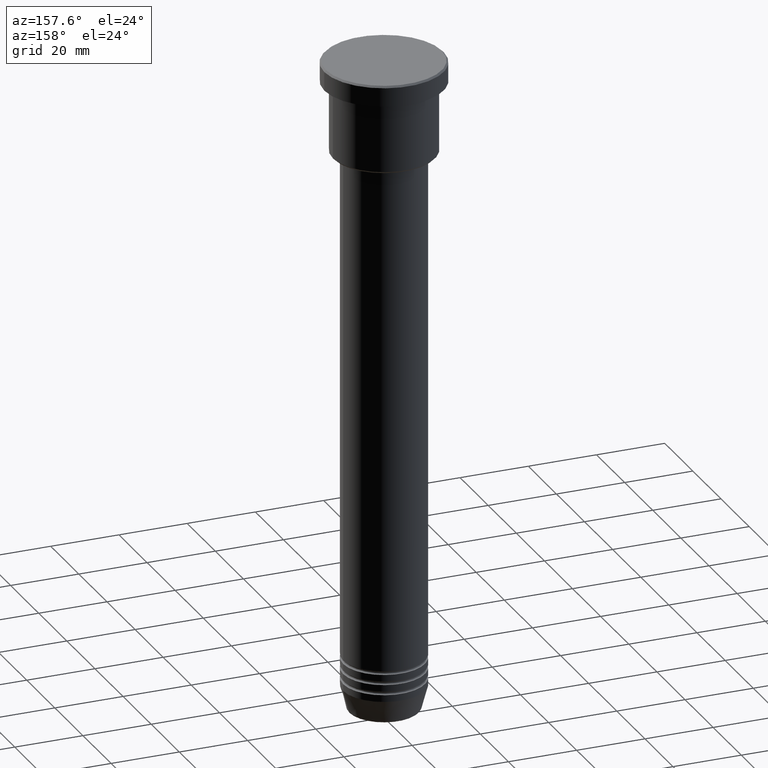
[diagram: clean part render]
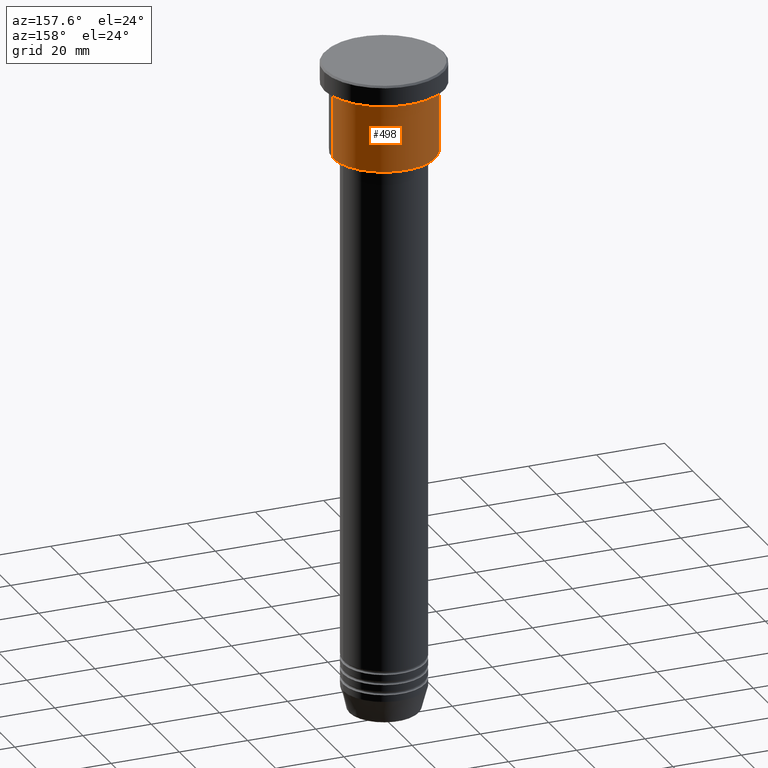
[diagram: same view with one face highlighted and labeled with its STEP entity id]
A machine part, auxiliary view. The second image highlights one B-rep face of the part: STEP entity #498.
In plain terms, the highlighted cylindrical surface (partial cylindrical patch) has radius 15 mm, axis along (-0, -0, 1).
Its self-contained STEP definition (entity closure, byte-faithful):
#7 = VERTEX_POINT ( 'NONE', #800 ) ;
#58 = DIRECTION ( 'NONE',  ( -0.000000000000000000, -0.000000000000000000, 1.000000000000000000 ) ) ;
#203 = ORIENTED_EDGE ( 'NONE', *, *, #235, .T. ) ;
#229 = ORIENTED_EDGE ( 'NONE', *, *, #1089, .F. ) ;
#235 = EDGE_CURVE ( 'NONE', #664, #707, #602, .T. ) ;
#240 = FACE_OUTER_BOUND ( 'NONE', #1026, .T. ) ;
#286 = AXIS2_PLACEMENT_3D ( 'NONE', #628, #1165, #1151 ) ;
#349 = EDGE_CURVE ( 'NONE', #7, #664, #351, .T. ) ;
#351 = CIRCLE ( 'NONE', #1107, 15.00000000000000000 ) ;
#422 = CYLINDRICAL_SURFACE ( 'NONE', #496, 15.00000000000000000 ) ;
#442 = DIRECTION ( 'NONE',  ( -0.000000000000000000, -0.000000000000000000, 1.000000000000000000 ) ) ;
#469 = CARTESIAN_POINT ( 'NONE',  ( 0.000000000000000000, 0.000000000000000000, -26.49999999999997158 ) ) ;
#486 = ORIENTED_EDGE ( 'NONE', *, *, #349, .T. ) ;
#491 = DIRECTION ( 'NONE',  ( 1.000000000000000000, 0.000000000000000000, 0.000000000000000000 ) ) ;
#496 = AXIS2_PLACEMENT_3D ( 'NONE', #717, #442, #491 ) ;
#498 = ADVANCED_FACE ( 'NONE', ( #240 ), #422, .T. ) ;
#501 = CARTESIAN_POINT ( 'NONE',  ( 15.00000000000000000, 0.000000000000000000, -6.999999999999995559 ) ) ;
#506 = CARTESIAN_POINT ( 'NONE',  ( 15.00000000000000000, 0.000000000000000000, 0.000000000000000000 ) ) ;
#507 = CARTESIAN_POINT ( 'NONE',  ( -15.00000000000000000, 1.836970198721029589E-15, 0.000000000000000000 ) ) ;
#544 = DIRECTION ( 'NONE',  ( -1.000000000000000000, 0.000000000000000000, 0.000000000000000000 ) ) ;
#582 = LINE ( 'NONE', #506, #598 ) ;
#598 = VECTOR ( 'NONE', #961, 1000.000000000000000 ) ;
#602 = LINE ( 'NONE', #507, #611 ) ;
#611 = VECTOR ( 'NONE', #58, 1000.000000000000000 ) ;
#628 = CARTESIAN_POINT ( 'NONE',  ( 0.000000000000000000, 0.000000000000000000, -6.999999999999995559 ) ) ;
#629 = ORIENTED_EDGE ( 'NONE', *, *, #932, .F. ) ;
#664 = VERTEX_POINT ( 'NONE', #1040 ) ;
#686 = CARTESIAN_POINT ( 'NONE',  ( -15.00000000000000000, 1.836970198721029589E-15, -6.999999999999995559 ) ) ;
#707 = VERTEX_POINT ( 'NONE', #686 ) ;
#717 = CARTESIAN_POINT ( 'NONE',  ( 0.000000000000000000, 0.000000000000000000, 0.000000000000000000 ) ) ;
#800 = CARTESIAN_POINT ( 'NONE',  ( 15.00000000000000000, 0.000000000000000000, -26.49999999999997158 ) ) ;
#818 = VERTEX_POINT ( 'NONE', #501 ) ;
#932 = EDGE_CURVE ( 'NONE', #818, #707, #986, .T. ) ;
#961 = DIRECTION ( 'NONE',  ( -0.000000000000000000, -0.000000000000000000, 1.000000000000000000 ) ) ;
#986 = CIRCLE ( 'NONE', #286, 15.00000000000000000 ) ;
#996 = DIRECTION ( 'NONE',  ( -0.000000000000000000, -0.000000000000000000, 1.000000000000000000 ) ) ;
#1026 = EDGE_LOOP ( 'NONE', ( #486, #203, #629, #229 ) ) ;
#1040 = CARTESIAN_POINT ( 'NONE',  ( -15.00000000000000000, 1.836970198721029589E-15, -26.49999999999997158 ) ) ;
#1089 = EDGE_CURVE ( 'NONE', #7, #818, #582, .T. ) ;
#1107 = AXIS2_PLACEMENT_3D ( 'NONE', #469, #996, #544 ) ;
#1151 = DIRECTION ( 'NONE',  ( 1.000000000000000000, 0.000000000000000000, 0.000000000000000000 ) ) ;
#1165 = DIRECTION ( 'NONE',  ( -0.000000000000000000, -0.000000000000000000, 1.000000000000000000 ) ) ;